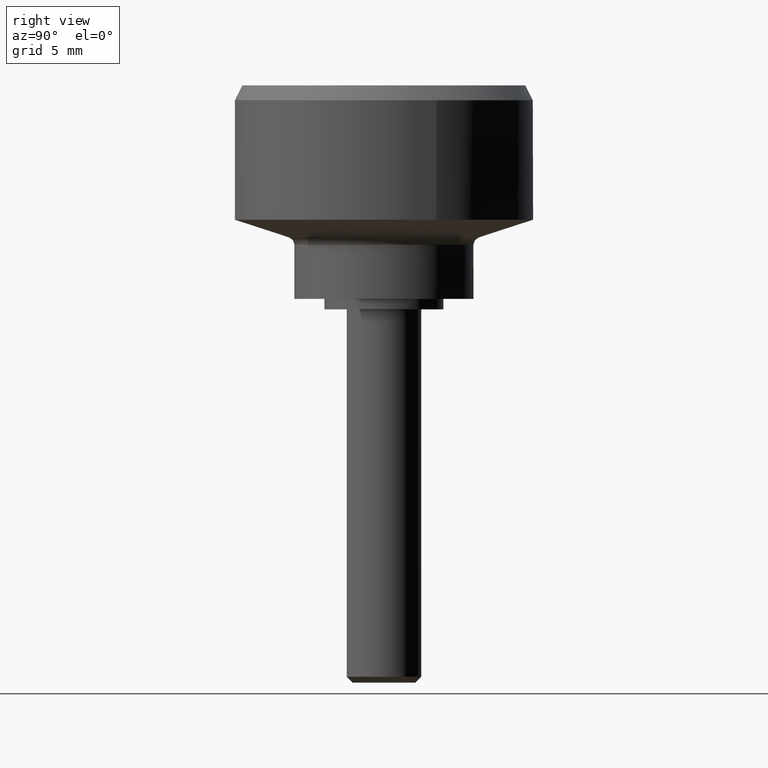
[diagram: clean part render]
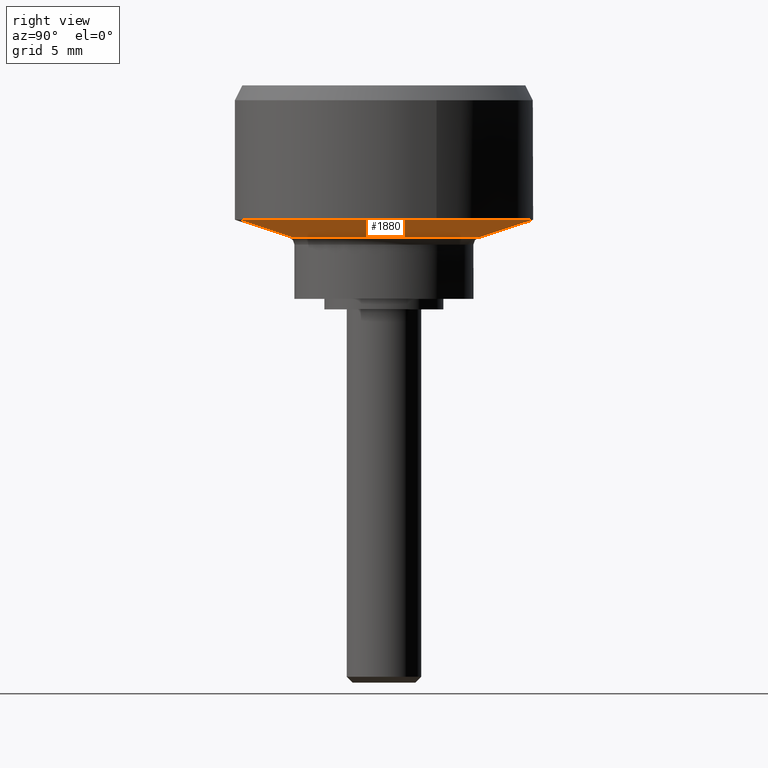
[diagram: same view with one face highlighted and labeled with its STEP entity id]
A machine part, right view. The second image highlights one B-rep face of the part: STEP entity #1880.
In plain terms, the highlighted face is a freeform B-spline surface patch.
Its self-contained STEP definition (entity closure, byte-faithful):
#1659=CARTESIAN_POINT('',(-2.503800040616949,9.681476403771431,6.000000000002869));
#1660=VERTEX_POINT('',#1659);
#1674=CARTESIAN_POINT('',(-1.588775553529751,6.143339237225591,4.812278946800051));
#1675=VERTEX_POINT('',#1674);
#1676=CARTESIAN_POINT('',(-1.588775553529751,6.143339237225591,4.812278946800051));
#1677=CARTESIAN_POINT('',(-2.503800040616949,9.681476403771431,6.000000000002869));
#1678=QUASI_UNIFORM_CURVE('',1,(#1676,#1677),.UNSPECIFIED.,.F.,.U.);
#1679=EDGE_CURVE('',#1675,#1660,#1678,.T.);
#1726=CARTESIAN_POINT('',(1.588775549495736,-6.143339221656346,4.812279000004396));
#1727=VERTEX_POINT('',#1726);
#1743=CARTESIAN_POINT('',(2.503800040571518,-9.681476403777497,6.000000000001080));
#1744=VERTEX_POINT('',#1743);
#1745=CARTESIAN_POINT('',(1.588775549495736,-6.143339221656346,4.812279000004396));
#1746=CARTESIAN_POINT('',(2.503800040571518,-9.681476403777497,6.000000000001080));
#1747=QUASI_UNIFORM_CURVE('',1,(#1745,#1746),.UNSPECIFIED.,.F.,.U.);
#1748=EDGE_CURVE('',#1727,#1744,#1747,.T.);
#1783=CARTESIAN_POINT('',(1.565899596042548,-6.054884473314354,4.782585532289525));
#1784=CARTESIAN_POINT('',(7.620784069356905,-4.488984877271806,4.782585532289525));
#1785=CARTESIAN_POINT('',(6.054884473314354,1.565899596042548,4.782585532289525));
#1786=CARTESIAN_POINT('',(4.488984877271806,7.620784069356905,4.782585532289525));
#1787=CARTESIAN_POINT('',(-1.565899596042548,6.054884473314354,4.782585532289525));
#1788=CARTESIAN_POINT('',(2.527247551656964,-9.772141202042741,6.030435361692763));
#1789=CARTESIAN_POINT('',(12.299388753699706,-7.244893650385776,6.030435361692763));
#1790=CARTESIAN_POINT('',(9.772141202042741,2.527247551656964,6.030435361692763));
#1791=CARTESIAN_POINT('',(7.244893650385776,12.299388753699706,6.030435361692763));
#1792=CARTESIAN_POINT('',(-2.527247551656964,9.772141202042741,6.030435361692763));
#1800=(BOUNDED_SURFACE()B_SPLINE_SURFACE(2,1,((#1783,#1788),(#1784,#1789),(#1785,#1790),(#1786,#1791),(#1787,#1792)),.UNSPECIFIED.,.F.,.F.,.U.)B_SPLINE_SURFACE_WITH_KNOTS((3,2,3),(2,2),(0.0,16.723703082022421,33.447406164044843),(0.0,4.037241220905951),.UNSPECIFIED.)GEOMETRIC_REPRESENTATION_ITEM()RATIONAL_B_SPLINE_SURFACE(((1.0,1.0),(0.707106781186548,0.707106781186548),(1.0,1.0),(0.707106781186548,0.707106781186548),(1.0,1.0)))REPRESENTATION_ITEM('')SURFACE());
#1801=CARTESIAN_POINT('',(9.361438676142448,3.516172053918408,6.000000000000001));
#1802=VERTEX_POINT('',#1801);
#1803=CARTESIAN_POINT('',(-2.503800040616949,9.681476403771431,6.000000000002869));
#1804=CARTESIAN_POINT('',(-1.272160680084282,9.999999999999998,6.0));
#1805=CARTESIAN_POINT('',(0.0,10.0,6.0));
#1806=CARTESIAN_POINT('',(6.926102034511213,10.0,5.999999999999999));
#1807=CARTESIAN_POINT('',(9.361438676142448,3.516172053918408,6.000000000000001));
#1815=(BOUNDED_CURVE()B_SPLINE_CURVE(2,(#1803,#1804,#1805,#1806,#1807),.UNSPECIFIED.,.F.,.U.)B_SPLINE_CURVE_WITH_KNOTS((3,2,3),(0.207273770287223,0.250000000000000,0.440284300647599),.UNSPECIFIED.)CURVE()GEOMETRIC_REPRESENTATION_ITEM()RATIONAL_B_SPLINE_CURVE((0.916996154473058,0.949943108206647,1.0,0.777068074774632,0.893499713417520))REPRESENTATION_ITEM(''));
#1816=EDGE_CURVE('',#1660,#1802,#1815,.T.);
#1817=ORIENTED_EDGE('',*,*,#1816,.T.);
#1818=CARTESIAN_POINT('',(10.0,0.0,6.0));
#1819=VERTEX_POINT('',#1818);
#1820=CARTESIAN_POINT('',(9.361438676142448,3.516172053918408,6.000000000000001));
#1821=CARTESIAN_POINT('',(10.000000000000002,1.816069617931707,6.0));
#1822=CARTESIAN_POINT('',(10.0,0.0,6.0));
#1830=(BOUNDED_CURVE()B_SPLINE_CURVE(2,(#1820,#1821,#1822),.UNSPECIFIED.,.F.,.U.)B_SPLINE_CURVE_WITH_KNOTS((3,3),(0.440284300647599,0.500000000000000),.UNSPECIFIED.)CURVE()GEOMETRIC_REPRESENTATION_ITEM()RATIONAL_B_SPLINE_CURVE((0.893499713417520,0.930038706411916,1.0))REPRESENTATION_ITEM(''));
#1831=EDGE_CURVE('',#1802,#1819,#1830,.T.);
#1832=ORIENTED_EDGE('',*,*,#1831,.T.);
#1833=CARTESIAN_POINT('',(10.0,0.0,6.0));
#1834=CARTESIAN_POINT('',(10.0,-7.742827278374549,6.000000000000001));
#1835=CARTESIAN_POINT('',(2.503800040571517,-9.681476403777497,6.000000000001080));
#1843=(BOUNDED_CURVE()B_SPLINE_CURVE(2,(#1833,#1834,#1835),.UNSPECIFIED.,.F.,.U.)B_SPLINE_CURVE_WITH_KNOTS((3,3),(0.500000000000000,0.707273770288698),.UNSPECIFIED.)CURVE()GEOMETRIC_REPRESENTATION_ITEM()RATIONAL_B_SPLINE_CURVE((1.0,0.757163672978172,0.916996154475333))REPRESENTATION_ITEM(''));
#1844=EDGE_CURVE('',#1819,#1744,#1843,.T.);
#1845=ORIENTED_EDGE('',*,*,#1844,.T.);
#1846=ORIENTED_EDGE('',*,*,#1748,.F.);
#1847=CARTESIAN_POINT('',(6.345457000000000,0.0,4.812279000000100));
#1848=VERTEX_POINT('',#1847);
#1849=CARTESIAN_POINT('',(6.345457000000000,0.0,4.812279000000100));
#1850=CARTESIAN_POINT('',(6.345457000000000,-4.913177755189087,4.812279000000100));
#1851=CARTESIAN_POINT('',(1.588775549495736,-6.143339221656346,4.812279000004396));
#1859=(BOUNDED_CURVE()B_SPLINE_CURVE(2,(#1849,#1850,#1851),.UNSPECIFIED.,.F.,.U.)B_SPLINE_CURVE_WITH_KNOTS((3,3),(0.500000000000000,0.707273770284029),.UNSPECIFIED.)CURVE()GEOMETRIC_REPRESENTATION_ITEM()RATIONAL_B_SPLINE_CURVE((1.0,0.757163672983643,0.916996154468131))REPRESENTATION_ITEM(''));
#1860=EDGE_CURVE('',#1848,#1727,#1859,.T.);
#1861=ORIENTED_EDGE('',*,*,#1860,.F.);
#1862=CARTESIAN_POINT('',(-1.588775553529751,6.143339237225591,4.812278946800052));
#1863=CARTESIAN_POINT('',(-0.807244084802905,6.345457000000000,4.812279000000100));
#1864=CARTESIAN_POINT('',(0.0,6.345457000000000,4.812279000000100));
#1865=CARTESIAN_POINT('',(6.345457000000001,6.345457000000001,4.812279000000099));
#1866=CARTESIAN_POINT('',(6.345457000000000,0.0,4.812279000000100));
#1874=(BOUNDED_CURVE()B_SPLINE_CURVE(2,(#1862,#1863,#1864,#1865,#1866),.UNSPECIFIED.,.F.,.U.)B_SPLINE_CURVE_WITH_KNOTS((3,2,3),(0.207273770511149,0.250000000000000,0.500000000000000),.UNSPECIFIED.)CURVE()GEOMETRIC_REPRESENTATION_ITEM()RATIONAL_B_SPLINE_CURVE((0.916996154818404,0.949943108468992,1.0,0.707106781186548,1.0))REPRESENTATION_ITEM(''));
#1875=EDGE_CURVE('',#1675,#1848,#1874,.T.);
#1876=ORIENTED_EDGE('',*,*,#1875,.F.);
#1877=ORIENTED_EDGE('',*,*,#1679,.T.);
#1878=EDGE_LOOP('',(#1817,#1832,#1845,#1846,#1861,#1876,#1877));
#1879=FACE_OUTER_BOUND('',#1878,.T.);
#1880=ADVANCED_FACE('',(#1879),#1800,.T.);